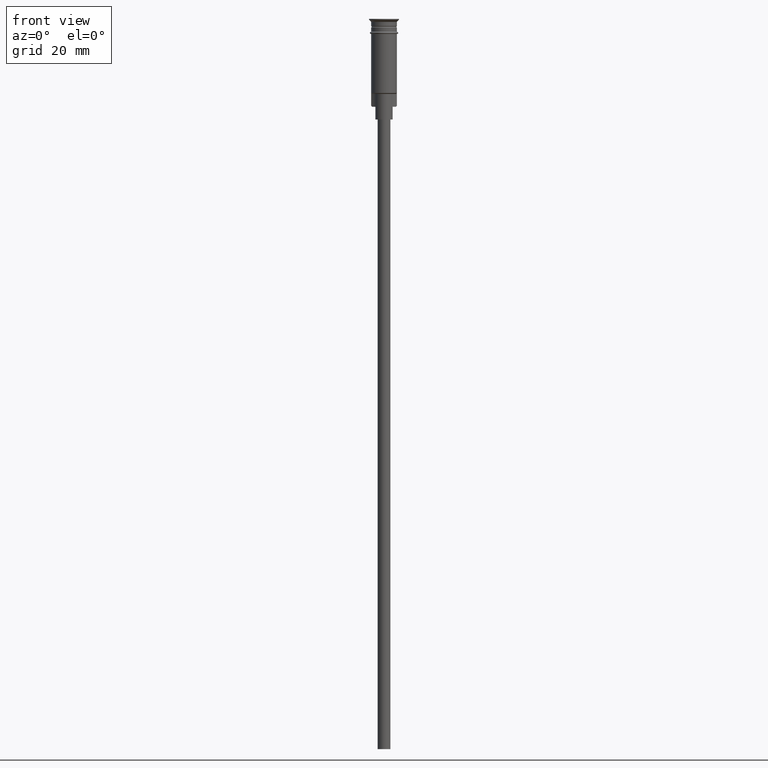
[diagram: clean part render]
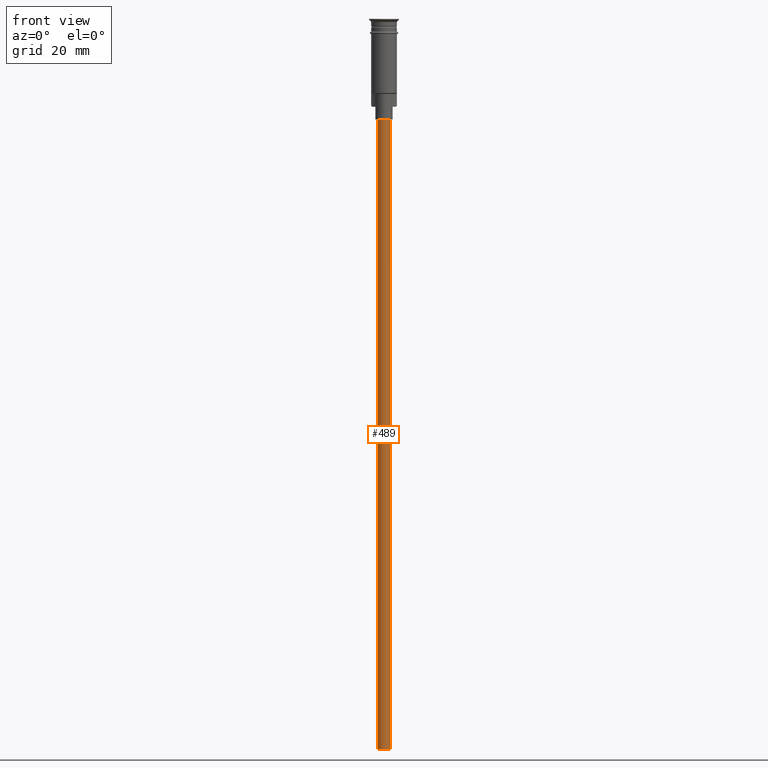
[diagram: same view with one face highlighted and labeled with its STEP entity id]
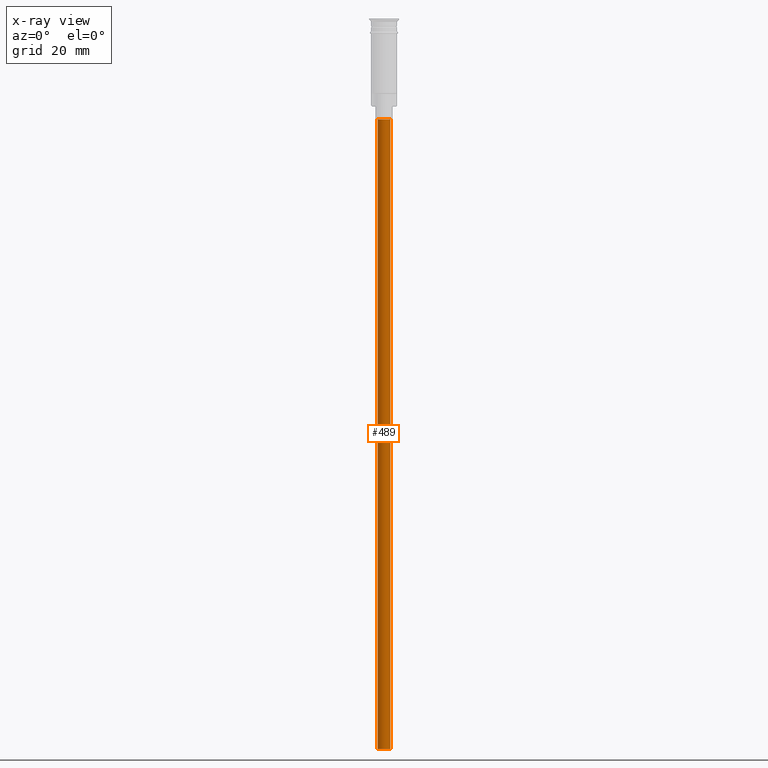
[diagram: x-ray of the same camera — body ghosted, the highlighted face saturated]
A machine part, front view. The second image highlights one B-rep face of the part: STEP entity #489.
The next image is the same camera in x-ray: the body ghosted, the highlighted face saturated — about 0% of this face is hidden behind the body in this view.
In plain terms, the highlighted cylindrical surface (edge-blend (fillet) strip) has radius 1.5 mm, axis along (-0, -0, 1).
Its self-contained STEP definition (entity closure, byte-faithful):
#17 = DIRECTION ( 'NONE',  ( -1.000000000000000000, 0.000000000000000000, 0.000000000000000000 ) ) ;
#27 = CARTESIAN_POINT ( 'NONE',  ( -1.500000000000000222, 1.836970198721030181E-16, -170.4999999999999716 ) ) ;
#134 = LINE ( 'NONE', #27, #1558 ) ;
#203 = EDGE_LOOP ( 'NONE', ( #1382, #1347, #845, #1470 ) ) ;
#238 = AXIS2_PLACEMENT_3D ( 'NONE', #256, #1125, #17 ) ;
#256 = CARTESIAN_POINT ( 'NONE',  ( 0.000000000000000000, 0.000000000000000000, -170.4999999999999716 ) ) ;
#263 = CYLINDRICAL_SURFACE ( 'NONE', #540, 1.500000000000000222 ) ;
#264 = AXIS2_PLACEMENT_3D ( 'NONE', #583, #1465, #1349 ) ;
#293 = VERTEX_POINT ( 'NONE', #1327 ) ;
#371 = VERTEX_POINT ( 'NONE', #855 ) ;
#375 = DIRECTION ( 'NONE',  ( -0.000000000000000000, -0.000000000000000000, 1.000000000000000000 ) ) ;
#489 = ADVANCED_FACE ( 'NONE', ( #1010 ), #263, .T. ) ;
#518 = EDGE_CURVE ( 'NONE', #371, #1334, #134, .T. ) ;
#540 = AXIS2_PLACEMENT_3D ( 'NONE', #636, #375, #1258 ) ;
#548 = EDGE_CURVE ( 'NONE', #293, #371, #933, .T. ) ;
#583 = CARTESIAN_POINT ( 'NONE',  ( 0.000000000000000000, 0.000000000000000000, -23.50000000000000000 ) ) ;
#636 = CARTESIAN_POINT ( 'NONE',  ( 0.000000000000000000, 0.000000000000000000, -170.4999999999999716 ) ) ;
#649 = DIRECTION ( 'NONE',  ( -0.000000000000000000, -0.000000000000000000, 1.000000000000000000 ) ) ;
#780 = CIRCLE ( 'NONE', #264, 1.500000000000000222 ) ;
#785 = EDGE_CURVE ( 'NONE', #1346, #1334, #780, .T. ) ;
#845 = ORIENTED_EDGE ( 'NONE', *, *, #1313, .T. ) ;
#855 = CARTESIAN_POINT ( 'NONE',  ( -1.500000000000000222, 1.836970198721030181E-16, -170.4999999999999716 ) ) ;
#881 = CARTESIAN_POINT ( 'NONE',  ( -1.500000000000000222, 1.836970198721030181E-16, -23.50000000000000000 ) ) ;
#933 = CIRCLE ( 'NONE', #238, 1.500000000000000222 ) ;
#1010 = FACE_OUTER_BOUND ( 'NONE', #203, .T. ) ;
#1125 = DIRECTION ( 'NONE',  ( 0.000000000000000000, 0.000000000000000000, -1.000000000000000000 ) ) ;
#1140 = CARTESIAN_POINT ( 'NONE',  ( 1.500000000000000222, 0.000000000000000000, -23.50000000000000000 ) ) ;
#1258 = DIRECTION ( 'NONE',  ( 1.000000000000000000, 0.000000000000000000, 0.000000000000000000 ) ) ;
#1313 = EDGE_CURVE ( 'NONE', #293, #1346, #1389, .T. ) ;
#1327 = CARTESIAN_POINT ( 'NONE',  ( 1.500000000000000222, 0.000000000000000000, -170.4999999999999716 ) ) ;
#1334 = VERTEX_POINT ( 'NONE', #881 ) ;
#1346 = VERTEX_POINT ( 'NONE', #1140 ) ;
#1347 = ORIENTED_EDGE ( 'NONE', *, *, #548, .F. ) ;
#1349 = DIRECTION ( 'NONE',  ( -1.000000000000000000, 0.000000000000000000, 0.000000000000000000 ) ) ;
#1370 = DIRECTION ( 'NONE',  ( -0.000000000000000000, -0.000000000000000000, 1.000000000000000000 ) ) ;
#1382 = ORIENTED_EDGE ( 'NONE', *, *, #518, .F. ) ;
#1389 = LINE ( 'NONE', #1395, #1513 ) ;
#1395 = CARTESIAN_POINT ( 'NONE',  ( 1.500000000000000222, 0.000000000000000000, -170.4999999999999716 ) ) ;
#1465 = DIRECTION ( 'NONE',  ( 0.000000000000000000, 0.000000000000000000, -1.000000000000000000 ) ) ;
#1470 = ORIENTED_EDGE ( 'NONE', *, *, #785, .T. ) ;
#1513 = VECTOR ( 'NONE', #649, 1000.000000000000000 ) ;
#1558 = VECTOR ( 'NONE', #1370, 1000.000000000000000 ) ;